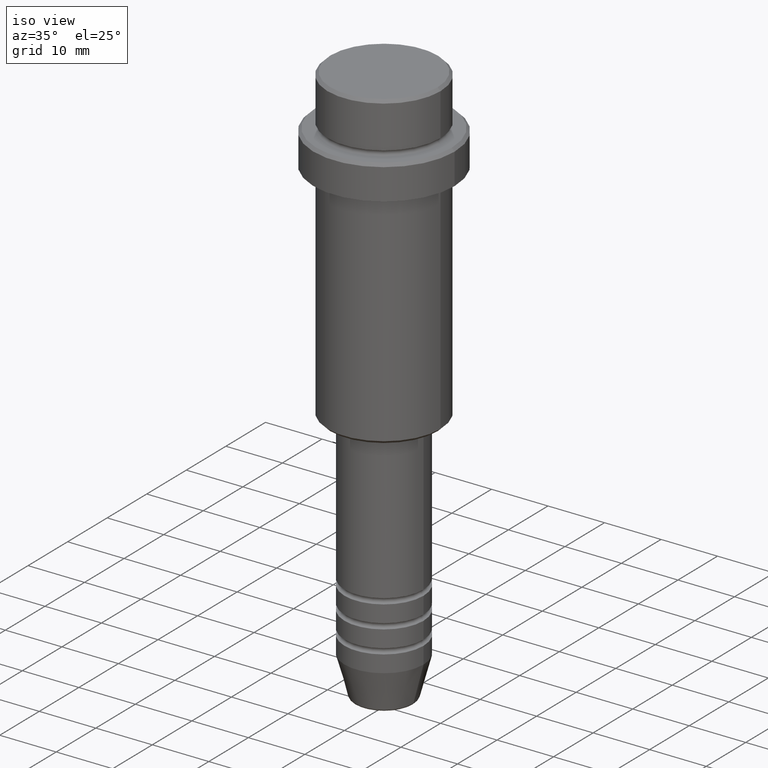
[diagram: clean part render]
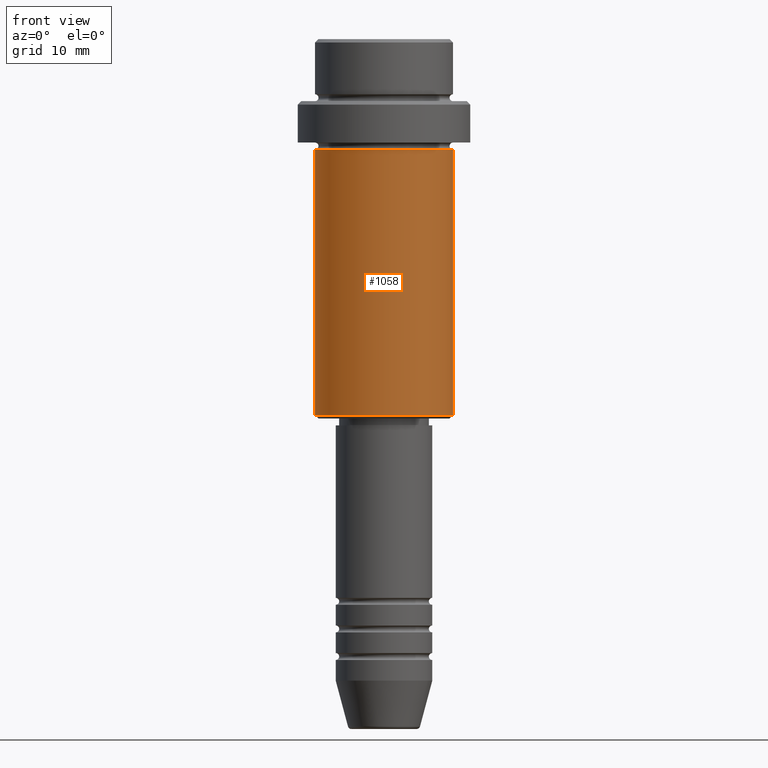
[diagram: tour spotlight — one face highlighted and labeled with its STEP entity id]
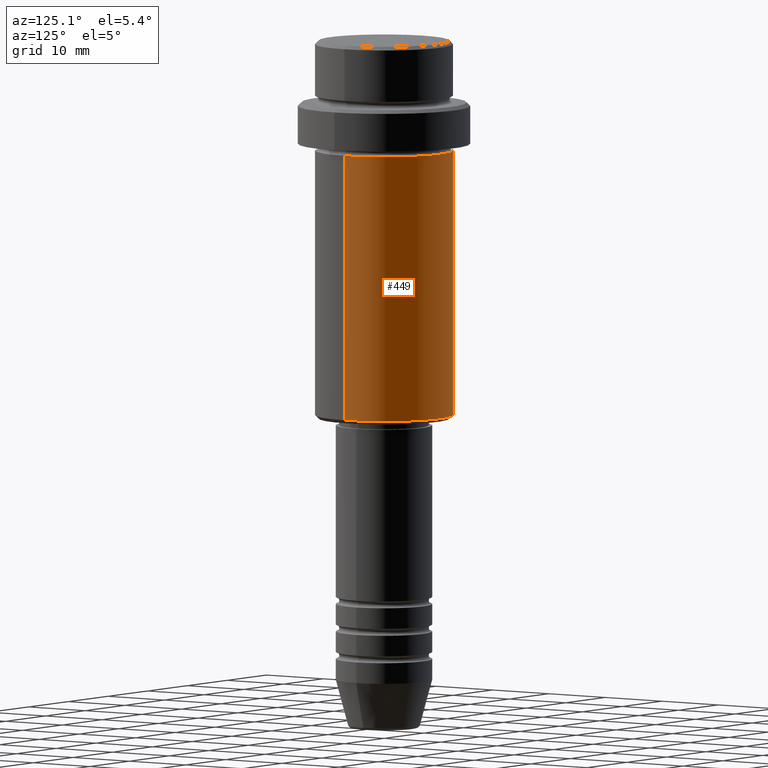
[diagram: tour spotlight — one face highlighted and labeled with its STEP entity id]
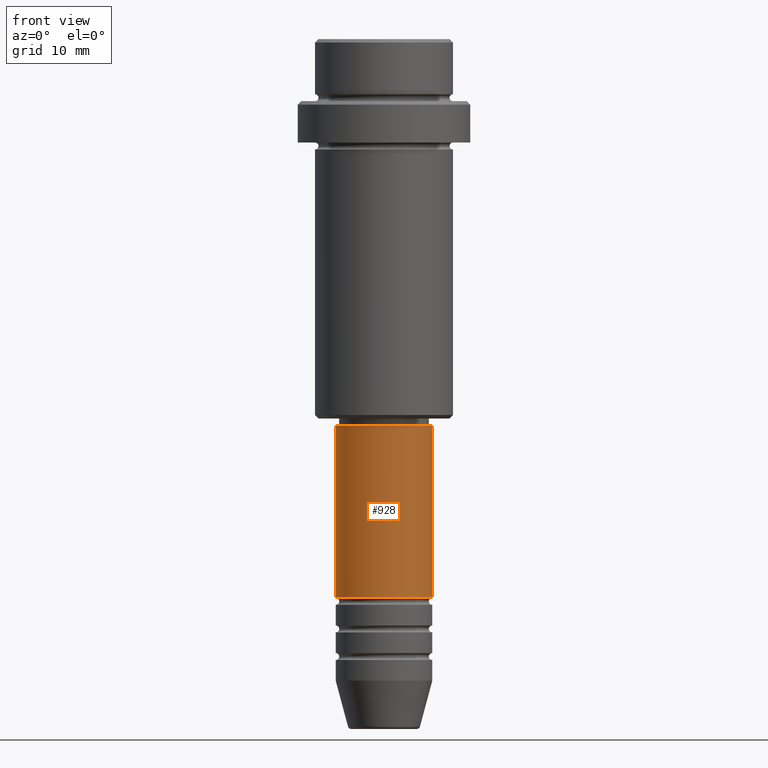
[diagram: tour spotlight — one face highlighted and labeled with its STEP entity id]
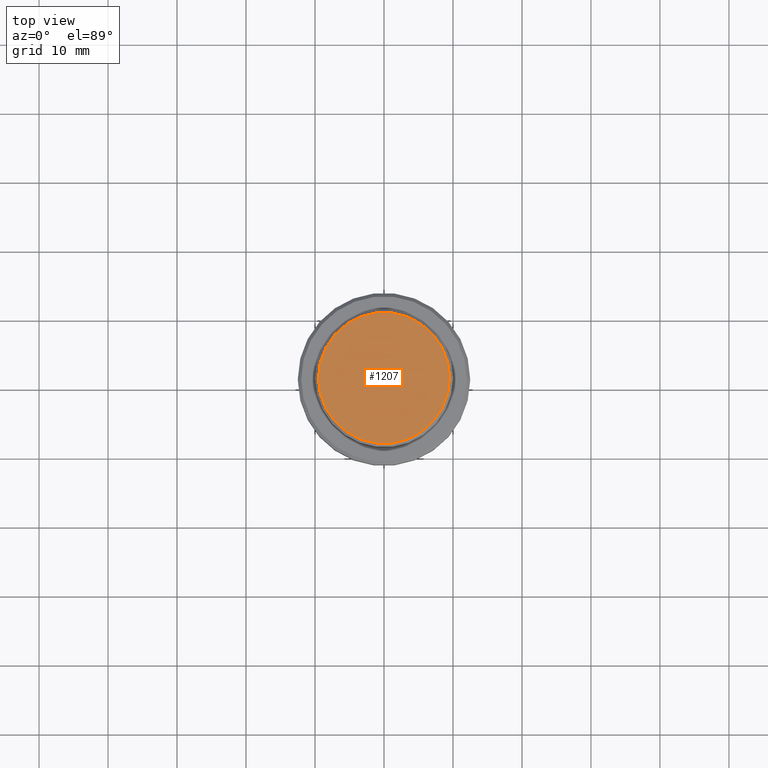
[diagram: tour spotlight — one face highlighted and labeled with its STEP entity id]
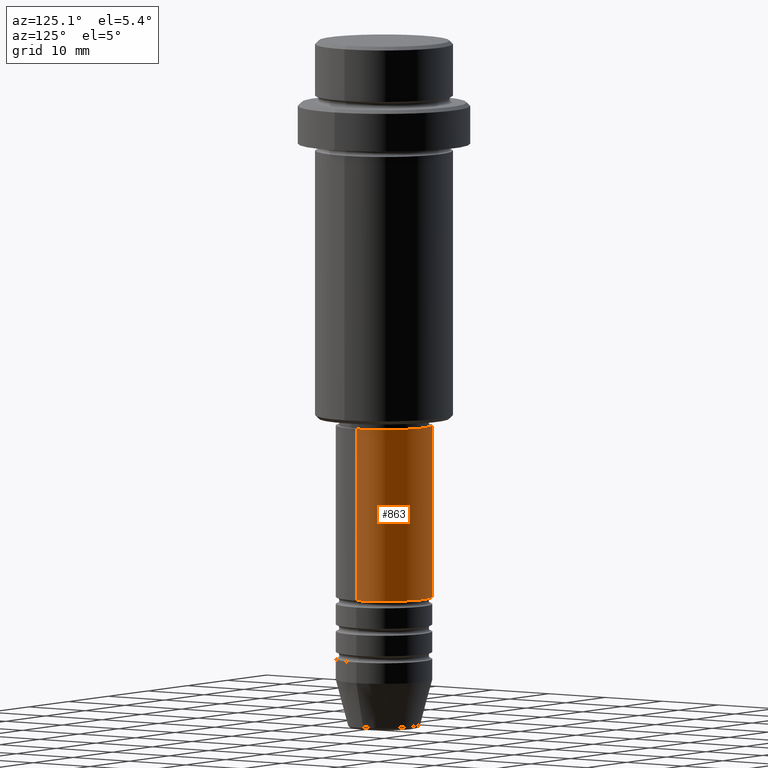
[diagram: tour spotlight — one face highlighted and labeled with its STEP entity id]
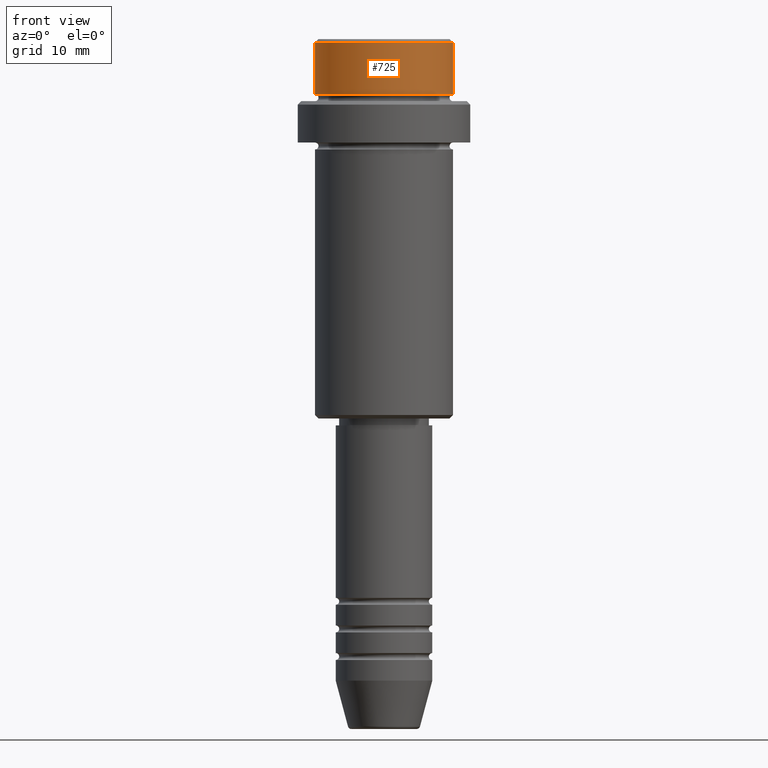
[diagram: tour spotlight — one face highlighted and labeled with its STEP entity id]
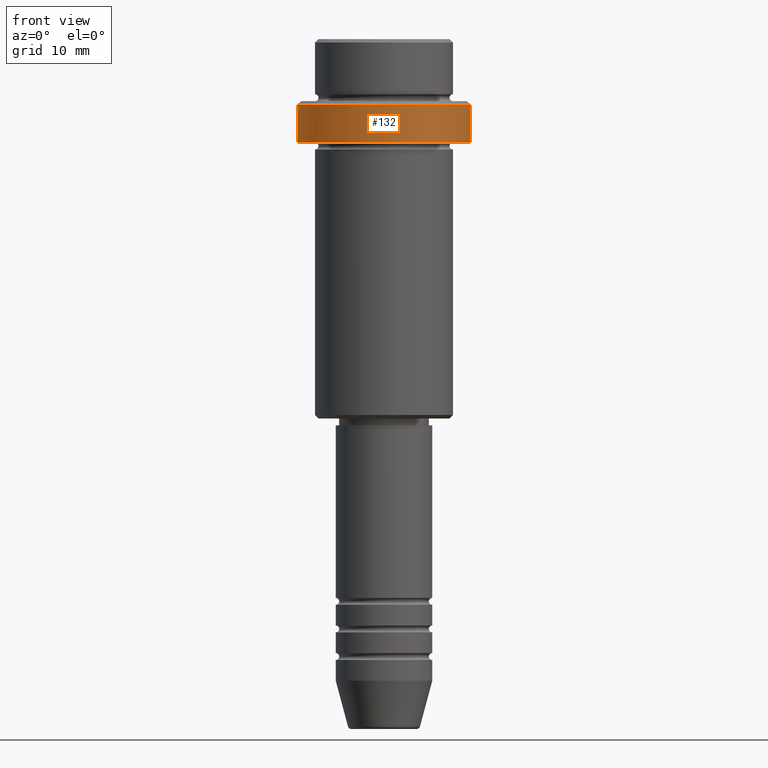
[diagram: tour spotlight — one face highlighted and labeled with its STEP entity id]
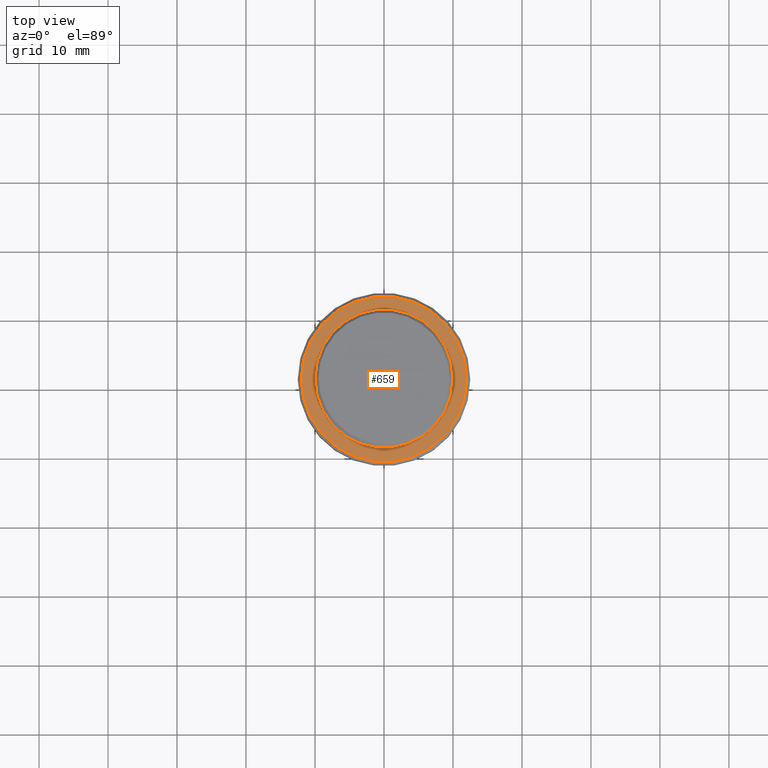
[diagram: tour spotlight — one face highlighted and labeled with its STEP entity id]
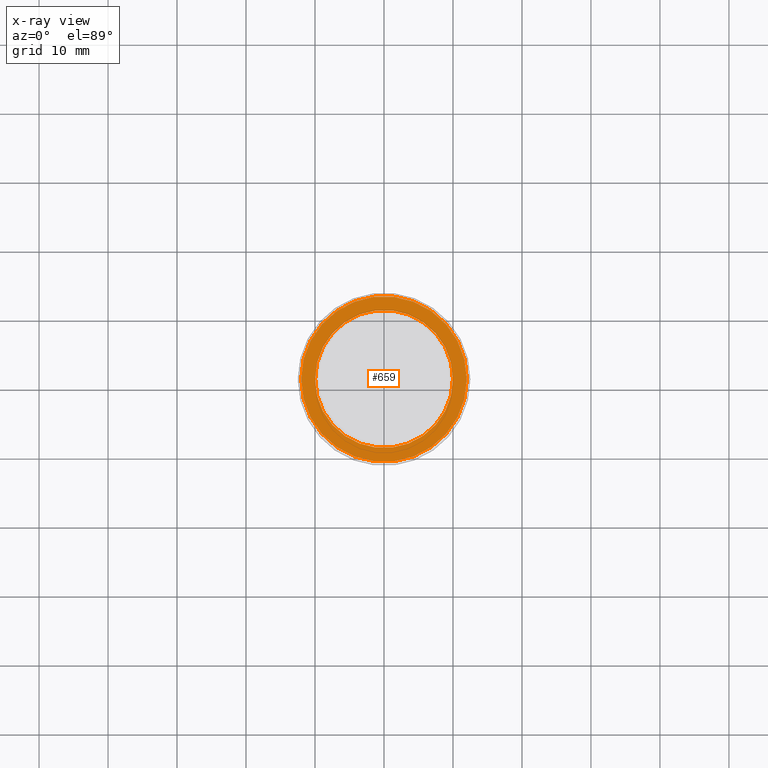
[diagram: x-ray of the same camera — body ghosted, this tour face saturated]
A machine part: a face-by-face anatomy tour. The part has 52 B-rep faces; the first image is the clean iso view, then the 8 largest visible faces are spotlighted one at a time (largest first), each with its STEP entity span.

Face 1 — front view, entity #1058. In plain terms, the highlighted cylindrical surface (partial cylindrical patch) has radius 10 mm, axis along (-0, -0, 1).
Definition (entity closure, byte-faithful):
#31 = CARTESIAN_POINT ( 'NONE',  ( -9.999999999999998224, 1.224646799147353059E-15, -54.50000000000000711 ) ) ;
#161 = EDGE_LOOP ( 'NONE', ( #986, #289, #569, #883 ) ) ;
#211 = CARTESIAN_POINT ( 'NONE',  ( 0.000000000000000000, 0.000000000000000000, -54.50000000000000711 ) ) ;
#229 = VERTEX_POINT ( 'NONE', #31 ) ;
#273 = CYLINDRICAL_SURFACE ( 'NONE', #667, 9.999999999999998224 ) ;
#289 = ORIENTED_EDGE ( 'NONE', *, *, #1116, .T. ) ;
#305 = VECTOR ( 'NONE', #800, 1000.000000000000000 ) ;
#307 = CARTESIAN_POINT ( 'NONE',  ( 9.999999999999998224, 0.000000000000000000, -54.50000000000000711 ) ) ;
#354 = CARTESIAN_POINT ( 'NONE',  ( 9.999999999999998224, 0.000000000000000000, 0.000000000000000000 ) ) ;
#439 = AXIS2_PLACEMENT_3D ( 'NONE', #1411, #754, #1197 ) ;
#442 = VERTEX_POINT ( 'NONE', #307 ) ;
#490 = DIRECTION ( 'NONE',  ( 1.000000000000000000, 0.000000000000000000, 0.000000000000000000 ) ) ;
#491 = AXIS2_PLACEMENT_3D ( 'NONE', #211, #739, #1298 ) ;
#499 = CARTESIAN_POINT ( 'NONE',  ( 0.000000000000000000, 0.000000000000000000, 0.000000000000000000 ) ) ;
#569 = ORIENTED_EDGE ( 'NONE', *, *, #656, .T. ) ;
#611 = CARTESIAN_POINT ( 'NONE',  ( -9.999999999999998224, 1.224646799147353059E-15, -16.00000000000000000 ) ) ;
#613 = CARTESIAN_POINT ( 'NONE',  ( -9.999999999999998224, 1.224646799147353059E-15, 0.000000000000000000 ) ) ;
#656 = EDGE_CURVE ( 'NONE', #442, #1079, #781, .T. ) ;
#667 = AXIS2_PLACEMENT_3D ( 'NONE', #499, #944, #490 ) ;
#694 = VECTOR ( 'NONE', #1350, 1000.000000000000000 ) ;
#712 = EDGE_CURVE ( 'NONE', #1050, #1079, #1315, .T. ) ;
#739 = DIRECTION ( 'NONE',  ( -0.000000000000000000, -0.000000000000000000, 1.000000000000000000 ) ) ;
#754 = DIRECTION ( 'NONE',  ( -0.000000000000000000, -0.000000000000000000, 1.000000000000000000 ) ) ;
#774 = EDGE_CURVE ( 'NONE', #229, #1050, #1271, .T. ) ;
#781 = LINE ( 'NONE', #354, #694 ) ;
#783 = CIRCLE ( 'NONE', #491, 9.999999999999998224 ) ;
#800 = DIRECTION ( 'NONE',  ( -0.000000000000000000, -0.000000000000000000, 1.000000000000000000 ) ) ;
#883 = ORIENTED_EDGE ( 'NONE', *, *, #712, .F. ) ;
#944 = DIRECTION ( 'NONE',  ( -0.000000000000000000, -0.000000000000000000, 1.000000000000000000 ) ) ;
#986 = ORIENTED_EDGE ( 'NONE', *, *, #774, .F. ) ;
#1044 = FACE_OUTER_BOUND ( 'NONE', #161, .T. ) ;
#1050 = VERTEX_POINT ( 'NONE', #611 ) ;
#1058 = ADVANCED_FACE ( 'NONE', ( #1044 ), #273, .T. ) ;
#1079 = VERTEX_POINT ( 'NONE', #1392 ) ;
#1116 = EDGE_CURVE ( 'NONE', #229, #442, #783, .T. ) ;
#1197 = DIRECTION ( 'NONE',  ( 1.000000000000000000, 0.000000000000000000, 0.000000000000000000 ) ) ;
#1271 = LINE ( 'NONE', #613, #305 ) ;
#1298 = DIRECTION ( 'NONE',  ( -1.000000000000000000, 0.000000000000000000, 0.000000000000000000 ) ) ;
#1315 = CIRCLE ( 'NONE', #439, 9.999999999999998224 ) ;
#1350 = DIRECTION ( 'NONE',  ( -0.000000000000000000, -0.000000000000000000, 1.000000000000000000 ) ) ;
#1392 = CARTESIAN_POINT ( 'NONE',  ( 9.999999999999998224, 0.000000000000000000, -16.00000000000000000 ) ) ;
#1411 = CARTESIAN_POINT ( 'NONE',  ( 0.000000000000000000, 0.000000000000000000, -16.00000000000000000 ) ) ;

Face 2 — auxiliary view, entity #449. In plain terms, the highlighted cylindrical surface (partial cylindrical patch) has radius 10 mm, axis along (-0, -0, 1).
Definition (entity closure, byte-faithful):
#31 = CARTESIAN_POINT ( 'NONE',  ( -9.999999999999998224, 1.224646799147353059E-15, -54.50000000000000711 ) ) ;
#32 = ORIENTED_EDGE ( 'NONE', *, *, #774, .T. ) ;
#38 = ORIENTED_EDGE ( 'NONE', *, *, #44, .T. ) ;
#44 = EDGE_CURVE ( 'NONE', #442, #229, #257, .T. ) ;
#80 = CYLINDRICAL_SURFACE ( 'NONE', #760, 9.999999999999998224 ) ;
#165 = CARTESIAN_POINT ( 'NONE',  ( 0.000000000000000000, 0.000000000000000000, -54.50000000000000711 ) ) ;
#229 = VERTEX_POINT ( 'NONE', #31 ) ;
#238 = DIRECTION ( 'NONE',  ( 1.000000000000000000, 0.000000000000000000, 0.000000000000000000 ) ) ;
#257 = CIRCLE ( 'NONE', #1053, 9.999999999999998224 ) ;
#284 = DIRECTION ( 'NONE',  ( 1.000000000000000000, 0.000000000000000000, 0.000000000000000000 ) ) ;
#305 = VECTOR ( 'NONE', #800, 1000.000000000000000 ) ;
#307 = CARTESIAN_POINT ( 'NONE',  ( 9.999999999999998224, 0.000000000000000000, -54.50000000000000711 ) ) ;
#322 = ORIENTED_EDGE ( 'NONE', *, *, #678, .F. ) ;
#354 = CARTESIAN_POINT ( 'NONE',  ( 9.999999999999998224, 0.000000000000000000, 0.000000000000000000 ) ) ;
#380 = DIRECTION ( 'NONE',  ( -0.000000000000000000, -0.000000000000000000, 1.000000000000000000 ) ) ;
#417 = AXIS2_PLACEMENT_3D ( 'NONE', #687, #1090, #238 ) ;
#422 = DIRECTION ( 'NONE',  ( -0.000000000000000000, -0.000000000000000000, 1.000000000000000000 ) ) ;
#442 = VERTEX_POINT ( 'NONE', #307 ) ;
#449 = ADVANCED_FACE ( 'NONE', ( #939 ), #80, .T. ) ;
#514 = CARTESIAN_POINT ( 'NONE',  ( 0.000000000000000000, 0.000000000000000000, 0.000000000000000000 ) ) ;
#595 = DIRECTION ( 'NONE',  ( -1.000000000000000000, 0.000000000000000000, 0.000000000000000000 ) ) ;
#611 = CARTESIAN_POINT ( 'NONE',  ( -9.999999999999998224, 1.224646799147353059E-15, -16.00000000000000000 ) ) ;
#613 = CARTESIAN_POINT ( 'NONE',  ( -9.999999999999998224, 1.224646799147353059E-15, 0.000000000000000000 ) ) ;
#655 = EDGE_LOOP ( 'NONE', ( #38, #32, #322, #780 ) ) ;
#656 = EDGE_CURVE ( 'NONE', #442, #1079, #781, .T. ) ;
#678 = EDGE_CURVE ( 'NONE', #1079, #1050, #1270, .T. ) ;
#687 = CARTESIAN_POINT ( 'NONE',  ( 0.000000000000000000, 0.000000000000000000, -16.00000000000000000 ) ) ;
#694 = VECTOR ( 'NONE', #1350, 1000.000000000000000 ) ;
#760 = AXIS2_PLACEMENT_3D ( 'NONE', #514, #422, #284 ) ;
#774 = EDGE_CURVE ( 'NONE', #229, #1050, #1271, .T. ) ;
#780 = ORIENTED_EDGE ( 'NONE', *, *, #656, .F. ) ;
#781 = LINE ( 'NONE', #354, #694 ) ;
#800 = DIRECTION ( 'NONE',  ( -0.000000000000000000, -0.000000000000000000, 1.000000000000000000 ) ) ;
#939 = FACE_OUTER_BOUND ( 'NONE', #655, .T. ) ;
#1050 = VERTEX_POINT ( 'NONE', #611 ) ;
#1053 = AXIS2_PLACEMENT_3D ( 'NONE', #165, #380, #595 ) ;
#1079 = VERTEX_POINT ( 'NONE', #1392 ) ;
#1090 = DIRECTION ( 'NONE',  ( -0.000000000000000000, -0.000000000000000000, 1.000000000000000000 ) ) ;
#1270 = CIRCLE ( 'NONE', #417, 9.999999999999998224 ) ;
#1271 = LINE ( 'NONE', #613, #305 ) ;
#1350 = DIRECTION ( 'NONE',  ( -0.000000000000000000, -0.000000000000000000, 1.000000000000000000 ) ) ;
#1392 = CARTESIAN_POINT ( 'NONE',  ( 9.999999999999998224, 0.000000000000000000, -16.00000000000000000 ) ) ;

Face 3 — front view, entity #928. In plain terms, the highlighted cylindrical surface (partial cylindrical patch) has radius 7 mm, axis along (-0, -0, 1).
Definition (entity closure, byte-faithful):
#58 = ORIENTED_EDGE ( 'NONE', *, *, #881, .F. ) ;
#145 = EDGE_CURVE ( 'NONE', #522, #1060, #1115, .T. ) ;
#169 = CYLINDRICAL_SURFACE ( 'NONE', #353, 7.000000000000000000 ) ;
#188 = FACE_OUTER_BOUND ( 'NONE', #888, .T. ) ;
#220 = DIRECTION ( 'NONE',  ( -0.000000000000000000, -0.000000000000000000, 1.000000000000000000 ) ) ;
#234 = VECTOR ( 'NONE', #471, 1000.000000000000000 ) ;
#353 = AXIS2_PLACEMENT_3D ( 'NONE', #1032, #619, #403 ) ;
#372 = CARTESIAN_POINT ( 'NONE',  ( -7.000000000000000000, 8.572527594031473190E-16, 0.000000000000000000 ) ) ;
#397 = CIRCLE ( 'NONE', #1126, 7.000000000000000000 ) ;
#403 = DIRECTION ( 'NONE',  ( 1.000000000000000000, 0.000000000000000000, 0.000000000000000000 ) ) ;
#407 = LINE ( 'NONE', #850, #1253 ) ;
#469 = CARTESIAN_POINT ( 'NONE',  ( 0.000000000000000000, 0.000000000000000000, -80.99999999999987210 ) ) ;
#471 = DIRECTION ( 'NONE',  ( -0.000000000000000000, -0.000000000000000000, 1.000000000000000000 ) ) ;
#495 = CARTESIAN_POINT ( 'NONE',  ( 0.000000000000000000, 0.000000000000000000, -55.99999999999997868 ) ) ;
#522 = VERTEX_POINT ( 'NONE', #1094 ) ;
#566 = ORIENTED_EDGE ( 'NONE', *, *, #705, .T. ) ;
#619 = DIRECTION ( 'NONE',  ( -0.000000000000000000, -0.000000000000000000, 1.000000000000000000 ) ) ;
#705 = EDGE_CURVE ( 'NONE', #522, #1040, #1226, .T. ) ;
#827 = AXIS2_PLACEMENT_3D ( 'NONE', #469, #1111, #1010 ) ;
#850 = CARTESIAN_POINT ( 'NONE',  ( 7.000000000000000000, 0.000000000000000000, 0.000000000000000000 ) ) ;
#857 = ORIENTED_EDGE ( 'NONE', *, *, #145, .F. ) ;
#881 = EDGE_CURVE ( 'NONE', #1060, #996, #397, .T. ) ;
#888 = EDGE_LOOP ( 'NONE', ( #857, #566, #1227, #58 ) ) ;
#928 = ADVANCED_FACE ( 'NONE', ( #188 ), #169, .T. ) ;
#931 = DIRECTION ( 'NONE',  ( 1.000000000000000000, 0.000000000000000000, 0.000000000000000000 ) ) ;
#996 = VERTEX_POINT ( 'NONE', #1228 ) ;
#1010 = DIRECTION ( 'NONE',  ( 1.000000000000000000, 0.000000000000000000, 0.000000000000000000 ) ) ;
#1032 = CARTESIAN_POINT ( 'NONE',  ( 0.000000000000000000, 0.000000000000000000, 0.000000000000000000 ) ) ;
#1040 = VERTEX_POINT ( 'NONE', #1216 ) ;
#1060 = VERTEX_POINT ( 'NONE', #1160 ) ;
#1088 = EDGE_CURVE ( 'NONE', #1040, #996, #407, .T. ) ;
#1094 = CARTESIAN_POINT ( 'NONE',  ( -7.000000000000000000, 8.572527594031473190E-16, -80.99999999999987210 ) ) ;
#1111 = DIRECTION ( 'NONE',  ( -0.000000000000000000, -0.000000000000000000, 1.000000000000000000 ) ) ;
#1115 = LINE ( 'NONE', #372, #234 ) ;
#1126 = AXIS2_PLACEMENT_3D ( 'NONE', #495, #1142, #931 ) ;
#1142 = DIRECTION ( 'NONE',  ( -0.000000000000000000, -0.000000000000000000, 1.000000000000000000 ) ) ;
#1160 = CARTESIAN_POINT ( 'NONE',  ( -7.000000000000000000, 8.572527594031473190E-16, -55.99999999999997868 ) ) ;
#1216 = CARTESIAN_POINT ( 'NONE',  ( 7.000000000000000000, 0.000000000000000000, -80.99999999999987210 ) ) ;
#1226 = CIRCLE ( 'NONE', #827, 7.000000000000000000 ) ;
#1227 = ORIENTED_EDGE ( 'NONE', *, *, #1088, .T. ) ;
#1228 = CARTESIAN_POINT ( 'NONE',  ( 7.000000000000000000, 0.000000000000000000, -55.99999999999997868 ) ) ;
#1253 = VECTOR ( 'NONE', #220, 1000.000000000000000 ) ;

Face 4 — top view, entity #1207. In plain terms, the highlighted planar face has unit normal (0, -0, 1).
Definition (entity closure, byte-faithful):
#83 = DIRECTION ( 'NONE',  ( 1.000000000000000000, 0.000000000000000000, 0.000000000000000000 ) ) ;
#185 = CARTESIAN_POINT ( 'NONE',  ( 9.499999999999994671, 1.194030629168669075E-15, 0.000000000000000000 ) ) ;
#230 = ORIENTED_EDGE ( 'NONE', *, *, #733, .T. ) ;
#283 = CARTESIAN_POINT ( 'NONE',  ( -9.499999999999994671, 0.000000000000000000, 0.000000000000000000 ) ) ;
#309 = EDGE_CURVE ( 'NONE', #1297, #769, #735, .T. ) ;
#582 = AXIS2_PLACEMENT_3D ( 'NONE', #979, #1057, #1280 ) ;
#637 = DIRECTION ( 'NONE',  ( 1.000000000000000000, 0.000000000000000000, 0.000000000000000000 ) ) ;
#720 = DIRECTION ( 'NONE',  ( -0.000000000000000000, -0.000000000000000000, 1.000000000000000000 ) ) ;
#733 = EDGE_CURVE ( 'NONE', #769, #1297, #810, .T. ) ;
#735 = CIRCLE ( 'NONE', #918, 9.499999999999994671 ) ;
#769 = VERTEX_POINT ( 'NONE', #283 ) ;
#810 = CIRCLE ( 'NONE', #582, 9.499999999999994671 ) ;
#918 = AXIS2_PLACEMENT_3D ( 'NONE', #930, #720, #637 ) ;
#930 = CARTESIAN_POINT ( 'NONE',  ( 0.000000000000000000, 0.000000000000000000, 0.000000000000000000 ) ) ;
#968 = CARTESIAN_POINT ( 'NONE',  ( 0.000000000000000000, 0.000000000000000000, 0.000000000000000000 ) ) ;
#979 = CARTESIAN_POINT ( 'NONE',  ( 0.000000000000000000, 0.000000000000000000, 0.000000000000000000 ) ) ;
#1057 = DIRECTION ( 'NONE',  ( -0.000000000000000000, -0.000000000000000000, 1.000000000000000000 ) ) ;
#1107 = ORIENTED_EDGE ( 'NONE', *, *, #309, .T. ) ;
#1178 = PLANE ( 'NONE',  #1365 ) ;
#1202 = FACE_OUTER_BOUND ( 'NONE', #1242, .T. ) ;
#1207 = ADVANCED_FACE ( 'NONE', ( #1202 ), #1178, .T. ) ;
#1210 = DIRECTION ( 'NONE',  ( 0.000000000000000000, -0.000000000000000000, 1.000000000000000000 ) ) ;
#1242 = EDGE_LOOP ( 'NONE', ( #230, #1107 ) ) ;
#1280 = DIRECTION ( 'NONE',  ( 1.000000000000000000, 0.000000000000000000, 0.000000000000000000 ) ) ;
#1297 = VERTEX_POINT ( 'NONE', #185 ) ;
#1365 = AXIS2_PLACEMENT_3D ( 'NONE', #968, #1210, #83 ) ;

Face 5 — auxiliary view, entity #863. In plain terms, the highlighted cylindrical surface (partial cylindrical patch) has radius 7 mm, axis along (-0, -0, 1).
Definition (entity closure, byte-faithful):
#22 = CARTESIAN_POINT ( 'NONE',  ( 0.000000000000000000, 0.000000000000000000, -55.99999999999997868 ) ) ;
#27 = ORIENTED_EDGE ( 'NONE', *, *, #960, .F. ) ;
#65 = DIRECTION ( 'NONE',  ( 1.000000000000000000, 0.000000000000000000, 0.000000000000000000 ) ) ;
#67 = CARTESIAN_POINT ( 'NONE',  ( 0.000000000000000000, 0.000000000000000000, -80.99999999999987210 ) ) ;
#145 = EDGE_CURVE ( 'NONE', #522, #1060, #1115, .T. ) ;
#183 = CYLINDRICAL_SURFACE ( 'NONE', #645, 7.000000000000000000 ) ;
#220 = DIRECTION ( 'NONE',  ( -0.000000000000000000, -0.000000000000000000, 1.000000000000000000 ) ) ;
#234 = VECTOR ( 'NONE', #471, 1000.000000000000000 ) ;
#264 = DIRECTION ( 'NONE',  ( -0.000000000000000000, -0.000000000000000000, 1.000000000000000000 ) ) ;
#275 = FACE_OUTER_BOUND ( 'NONE', #1141, .T. ) ;
#327 = AXIS2_PLACEMENT_3D ( 'NONE', #22, #264, #684 ) ;
#372 = CARTESIAN_POINT ( 'NONE',  ( -7.000000000000000000, 8.572527594031473190E-16, 0.000000000000000000 ) ) ;
#407 = LINE ( 'NONE', #850, #1253 ) ;
#468 = CIRCLE ( 'NONE', #327, 7.000000000000000000 ) ;
#471 = DIRECTION ( 'NONE',  ( -0.000000000000000000, -0.000000000000000000, 1.000000000000000000 ) ) ;
#511 = AXIS2_PLACEMENT_3D ( 'NONE', #67, #704, #1273 ) ;
#522 = VERTEX_POINT ( 'NONE', #1094 ) ;
#635 = ORIENTED_EDGE ( 'NONE', *, *, #1088, .F. ) ;
#645 = AXIS2_PLACEMENT_3D ( 'NONE', #832, #730, #65 ) ;
#684 = DIRECTION ( 'NONE',  ( 1.000000000000000000, 0.000000000000000000, 0.000000000000000000 ) ) ;
#704 = DIRECTION ( 'NONE',  ( -0.000000000000000000, -0.000000000000000000, 1.000000000000000000 ) ) ;
#730 = DIRECTION ( 'NONE',  ( -0.000000000000000000, -0.000000000000000000, 1.000000000000000000 ) ) ;
#749 = ORIENTED_EDGE ( 'NONE', *, *, #145, .T. ) ;
#832 = CARTESIAN_POINT ( 'NONE',  ( 0.000000000000000000, 0.000000000000000000, 0.000000000000000000 ) ) ;
#850 = CARTESIAN_POINT ( 'NONE',  ( 7.000000000000000000, 0.000000000000000000, 0.000000000000000000 ) ) ;
#863 = ADVANCED_FACE ( 'NONE', ( #275 ), #183, .T. ) ;
#867 = ORIENTED_EDGE ( 'NONE', *, *, #1225, .T. ) ;
#960 = EDGE_CURVE ( 'NONE', #996, #1060, #468, .T. ) ;
#996 = VERTEX_POINT ( 'NONE', #1228 ) ;
#1040 = VERTEX_POINT ( 'NONE', #1216 ) ;
#1060 = VERTEX_POINT ( 'NONE', #1160 ) ;
#1088 = EDGE_CURVE ( 'NONE', #1040, #996, #407, .T. ) ;
#1094 = CARTESIAN_POINT ( 'NONE',  ( -7.000000000000000000, 8.572527594031473190E-16, -80.99999999999987210 ) ) ;
#1115 = LINE ( 'NONE', #372, #234 ) ;
#1141 = EDGE_LOOP ( 'NONE', ( #867, #749, #27, #635 ) ) ;
#1160 = CARTESIAN_POINT ( 'NONE',  ( -7.000000000000000000, 8.572527594031473190E-16, -55.99999999999997868 ) ) ;
#1216 = CARTESIAN_POINT ( 'NONE',  ( 7.000000000000000000, 0.000000000000000000, -80.99999999999987210 ) ) ;
#1225 = EDGE_CURVE ( 'NONE', #1040, #522, #1289, .T. ) ;
#1228 = CARTESIAN_POINT ( 'NONE',  ( 7.000000000000000000, 0.000000000000000000, -55.99999999999997868 ) ) ;
#1253 = VECTOR ( 'NONE', #220, 1000.000000000000000 ) ;
#1273 = DIRECTION ( 'NONE',  ( 1.000000000000000000, 0.000000000000000000, 0.000000000000000000 ) ) ;
#1289 = CIRCLE ( 'NONE', #511, 7.000000000000000000 ) ;

Face 6 — front view, entity #725. In plain terms, the highlighted cylindrical surface (partial cylindrical patch) has radius 10 mm, axis along (-0, -0, 1).
Definition (entity closure, byte-faithful):
#76 = AXIS2_PLACEMENT_3D ( 'NONE', #954, #405, #1167 ) ;
#110 = DIRECTION ( 'NONE',  ( -0.000000000000000000, -0.000000000000000000, 1.000000000000000000 ) ) ;
#155 = AXIS2_PLACEMENT_3D ( 'NONE', #630, #110, #1303 ) ;
#198 = CARTESIAN_POINT ( 'NONE',  ( -9.999999999999998224, 1.224646799147353059E-15, -0.5000000000000108802 ) ) ;
#219 = FACE_OUTER_BOUND ( 'NONE', #313, .T. ) ;
#243 = EDGE_CURVE ( 'NONE', #1338, #1145, #389, .T. ) ;
#263 = ORIENTED_EDGE ( 'NONE', *, *, #1293, .T. ) ;
#313 = EDGE_LOOP ( 'NONE', ( #1257, #849, #263, #1344 ) ) ;
#358 = DIRECTION ( 'NONE',  ( -0.000000000000000000, -0.000000000000000000, 1.000000000000000000 ) ) ;
#389 = CIRCLE ( 'NONE', #806, 9.999999999999998224 ) ;
#405 = DIRECTION ( 'NONE',  ( 0.000000000000000000, 0.000000000000000000, -1.000000000000000000 ) ) ;
#434 = VERTEX_POINT ( 'NONE', #843 ) ;
#486 = LINE ( 'NONE', #1153, #922 ) ;
#604 = VECTOR ( 'NONE', #721, 1000.000000000000000 ) ;
#616 = DIRECTION ( 'NONE',  ( -0.000000000000000000, -0.000000000000000000, 1.000000000000000000 ) ) ;
#630 = CARTESIAN_POINT ( 'NONE',  ( 0.000000000000000000, 0.000000000000000000, 0.000000000000000000 ) ) ;
#721 = DIRECTION ( 'NONE',  ( -0.000000000000000000, -0.000000000000000000, 1.000000000000000000 ) ) ;
#725 = ADVANCED_FACE ( 'NONE', ( #219 ), #1287, .T. ) ;
#791 = DIRECTION ( 'NONE',  ( 1.000000000000000000, 0.000000000000000000, 0.000000000000000000 ) ) ;
#798 = CARTESIAN_POINT ( 'NONE',  ( 0.000000000000000000, 0.000000000000000000, -7.999999999999998224 ) ) ;
#806 = AXIS2_PLACEMENT_3D ( 'NONE', #798, #358, #791 ) ;
#816 = LINE ( 'NONE', #1168, #604 ) ;
#841 = CARTESIAN_POINT ( 'NONE',  ( 9.999999999999998224, 0.000000000000000000, -7.999999999999998224 ) ) ;
#843 = CARTESIAN_POINT ( 'NONE',  ( 9.999999999999998224, 0.000000000000000000, -0.5000000000000108802 ) ) ;
#849 = ORIENTED_EDGE ( 'NONE', *, *, #243, .T. ) ;
#901 = EDGE_CURVE ( 'NONE', #1338, #1409, #816, .T. ) ;
#922 = VECTOR ( 'NONE', #616, 1000.000000000000000 ) ;
#954 = CARTESIAN_POINT ( 'NONE',  ( 0.000000000000000000, 0.000000000000000000, -0.5000000000000108802 ) ) ;
#1145 = VERTEX_POINT ( 'NONE', #841 ) ;
#1153 = CARTESIAN_POINT ( 'NONE',  ( 9.999999999999998224, 0.000000000000000000, 0.000000000000000000 ) ) ;
#1167 = DIRECTION ( 'NONE',  ( 1.000000000000000000, 0.000000000000000000, 0.000000000000000000 ) ) ;
#1168 = CARTESIAN_POINT ( 'NONE',  ( -9.999999999999998224, 1.224646799147353059E-15, 0.000000000000000000 ) ) ;
#1198 = CIRCLE ( 'NONE', #76, 9.999999999999998224 ) ;
#1257 = ORIENTED_EDGE ( 'NONE', *, *, #901, .F. ) ;
#1264 = CARTESIAN_POINT ( 'NONE',  ( -9.999999999999998224, 1.224646799147353059E-15, -7.999999999999998224 ) ) ;
#1287 = CYLINDRICAL_SURFACE ( 'NONE', #155, 9.999999999999998224 ) ;
#1293 = EDGE_CURVE ( 'NONE', #1145, #434, #486, .T. ) ;
#1303 = DIRECTION ( 'NONE',  ( 1.000000000000000000, 0.000000000000000000, 0.000000000000000000 ) ) ;
#1338 = VERTEX_POINT ( 'NONE', #1264 ) ;
#1344 = ORIENTED_EDGE ( 'NONE', *, *, #1377, .T. ) ;
#1377 = EDGE_CURVE ( 'NONE', #434, #1409, #1198, .T. ) ;
#1409 = VERTEX_POINT ( 'NONE', #198 ) ;

Face 7 — front view, entity #132. In plain terms, the highlighted cylindrical surface (partial cylindrical patch) has radius 12.5 mm, axis along (-0, -0, 1).
Definition (entity closure, byte-faithful):
#88 = VERTEX_POINT ( 'NONE', #1082 ) ;
#108 = ORIENTED_EDGE ( 'NONE', *, *, #1353, .T. ) ;
#132 = ADVANCED_FACE ( 'NONE', ( #528 ), #970, .T. ) ;
#148 = ORIENTED_EDGE ( 'NONE', *, *, #421, .T. ) ;
#153 = AXIS2_PLACEMENT_3D ( 'NONE', #408, #1180, #518 ) ;
#182 = VERTEX_POINT ( 'NONE', #476 ) ;
#192 = AXIS2_PLACEMENT_3D ( 'NONE', #1408, #1301, #752 ) ;
#205 = DIRECTION ( 'NONE',  ( -0.000000000000000000, -0.000000000000000000, 1.000000000000000000 ) ) ;
#288 = CARTESIAN_POINT ( 'NONE',  ( -12.50000000000000000, 1.530808498934191521E-15, -9.500000000000005329 ) ) ;
#333 = CARTESIAN_POINT ( 'NONE',  ( 12.50000000000000000, 0.000000000000000000, -15.00000000000000000 ) ) ;
#357 = ORIENTED_EDGE ( 'NONE', *, *, #958, .T. ) ;
#408 = CARTESIAN_POINT ( 'NONE',  ( 0.000000000000000000, 0.000000000000000000, -15.00000000000000000 ) ) ;
#421 = EDGE_CURVE ( 'NONE', #88, #897, #553, .T. ) ;
#476 = CARTESIAN_POINT ( 'NONE',  ( -12.50000000000000000, 1.530808498934191521E-15, -15.00000000000000000 ) ) ;
#518 = DIRECTION ( 'NONE',  ( 1.000000000000000000, 0.000000000000000000, 0.000000000000000000 ) ) ;
#528 = FACE_OUTER_BOUND ( 'NONE', #1368, .T. ) ;
#553 = CIRCLE ( 'NONE', #1014, 12.50000000000000000 ) ;
#699 = DIRECTION ( 'NONE',  ( -0.000000000000000000, -0.000000000000000000, 1.000000000000000000 ) ) ;
#723 = DIRECTION ( 'NONE',  ( 0.000000000000000000, 0.000000000000000000, -1.000000000000000000 ) ) ;
#743 = LINE ( 'NONE', #1183, #1174 ) ;
#752 = DIRECTION ( 'NONE',  ( 1.000000000000000000, 0.000000000000000000, 0.000000000000000000 ) ) ;
#763 = EDGE_CURVE ( 'NONE', #182, #897, #743, .T. ) ;
#802 = CARTESIAN_POINT ( 'NONE',  ( 12.50000000000000000, 0.000000000000000000, 0.000000000000000000 ) ) ;
#835 = ORIENTED_EDGE ( 'NONE', *, *, #763, .F. ) ;
#897 = VERTEX_POINT ( 'NONE', #288 ) ;
#958 = EDGE_CURVE ( 'NONE', #182, #1201, #1081, .T. ) ;
#970 = CYLINDRICAL_SURFACE ( 'NONE', #192, 12.50000000000000000 ) ;
#1013 = VECTOR ( 'NONE', #699, 1000.000000000000000 ) ;
#1014 = AXIS2_PLACEMENT_3D ( 'NONE', #1164, #723, #1173 ) ;
#1081 = CIRCLE ( 'NONE', #153, 12.50000000000000000 ) ;
#1082 = CARTESIAN_POINT ( 'NONE',  ( 12.50000000000000000, 0.000000000000000000, -9.500000000000005329 ) ) ;
#1164 = CARTESIAN_POINT ( 'NONE',  ( 0.000000000000000000, 0.000000000000000000, -9.500000000000005329 ) ) ;
#1173 = DIRECTION ( 'NONE',  ( 1.000000000000000000, 0.000000000000000000, 0.000000000000000000 ) ) ;
#1174 = VECTOR ( 'NONE', #205, 1000.000000000000000 ) ;
#1180 = DIRECTION ( 'NONE',  ( -0.000000000000000000, -0.000000000000000000, 1.000000000000000000 ) ) ;
#1183 = CARTESIAN_POINT ( 'NONE',  ( -12.50000000000000000, 1.530808498934191521E-15, 0.000000000000000000 ) ) ;
#1201 = VERTEX_POINT ( 'NONE', #333 ) ;
#1301 = DIRECTION ( 'NONE',  ( -0.000000000000000000, -0.000000000000000000, 1.000000000000000000 ) ) ;
#1353 = EDGE_CURVE ( 'NONE', #1201, #88, #1387, .T. ) ;
#1368 = EDGE_LOOP ( 'NONE', ( #835, #357, #108, #148 ) ) ;
#1387 = LINE ( 'NONE', #802, #1013 ) ;
#1408 = CARTESIAN_POINT ( 'NONE',  ( 0.000000000000000000, 0.000000000000000000, 0.000000000000000000 ) ) ;

Face 8 — top view, entity #659. An x-ray twin of the same camera follows (body ghosted, this face saturated) — the face is partly hidden behind the body. In plain terms, the highlighted planar face has unit normal (0, -0, 1).
Definition (entity closure, byte-faithful):
#12 = FACE_BOUND ( 'NONE', #976, .T. ) ;
#36 = CARTESIAN_POINT ( 'NONE',  ( -11.99999999999999645, 0.000000000000000000, -9.000000000000000000 ) ) ;
#37 = AXIS2_PLACEMENT_3D ( 'NONE', #346, #244, #682 ) ;
#60 = AXIS2_PLACEMENT_3D ( 'NONE', #1248, #766, #266 ) ;
#77 = AXIS2_PLACEMENT_3D ( 'NONE', #228, #453, #1328 ) ;
#81 = CARTESIAN_POINT ( 'NONE',  ( 0.000000000000000000, 0.000000000000000000, -9.000000000000000000 ) ) ;
#100 = CARTESIAN_POINT ( 'NONE',  ( 11.99999999999999645, 1.500192328955507537E-15, -9.000000000000000000 ) ) ;
#128 = VERTEX_POINT ( 'NONE', #100 ) ;
#206 = ORIENTED_EDGE ( 'NONE', *, *, #696, .T. ) ;
#217 = CIRCLE ( 'NONE', #37, 11.99999999999999645 ) ;
#223 = PLANE ( 'NONE',  #77 ) ;
#228 = CARTESIAN_POINT ( 'NONE',  ( 0.000000000000000000, 9.499999999999992895, -9.000000000000000000 ) ) ;
#244 = DIRECTION ( 'NONE',  ( -0.000000000000000000, -0.000000000000000000, 1.000000000000000000 ) ) ;
#266 = DIRECTION ( 'NONE',  ( 1.000000000000000000, 0.000000000000000000, 0.000000000000000000 ) ) ;
#278 = EDGE_CURVE ( 'NONE', #978, #683, #1246, .T. ) ;
#346 = CARTESIAN_POINT ( 'NONE',  ( 0.000000000000000000, 0.000000000000000000, -9.000000000000000000 ) ) ;
#411 = DIRECTION ( 'NONE',  ( 1.000000000000000000, 0.000000000000000000, 0.000000000000000000 ) ) ;
#445 = ORIENTED_EDGE ( 'NONE', *, *, #797, .T. ) ;
#453 = DIRECTION ( 'NONE',  ( 0.000000000000000000, -0.000000000000000000, 1.000000000000000000 ) ) ;
#621 = AXIS2_PLACEMENT_3D ( 'NONE', #916, #815, #1258 ) ;
#659 = ADVANCED_FACE ( 'NONE', ( #801, #12 ), #223, .T. ) ;
#682 = DIRECTION ( 'NONE',  ( 1.000000000000000000, 0.000000000000000000, 0.000000000000000000 ) ) ;
#683 = VERTEX_POINT ( 'NONE', #1334 ) ;
#696 = EDGE_CURVE ( 'NONE', #706, #128, #217, .T. ) ;
#697 = AXIS2_PLACEMENT_3D ( 'NONE', #81, #1165, #411 ) ;
#706 = VERTEX_POINT ( 'NONE', #36 ) ;
#751 = EDGE_CURVE ( 'NONE', #683, #978, #894, .T. ) ;
#766 = DIRECTION ( 'NONE',  ( -0.000000000000000000, -0.000000000000000000, 1.000000000000000000 ) ) ;
#773 = ORIENTED_EDGE ( 'NONE', *, *, #751, .T. ) ;
#796 = CARTESIAN_POINT ( 'NONE',  ( 9.999999999999992895, 0.000000000000000000, -9.000000000000000000 ) ) ;
#797 = EDGE_CURVE ( 'NONE', #128, #706, #873, .T. ) ;
#801 = FACE_OUTER_BOUND ( 'NONE', #1372, .T. ) ;
#815 = DIRECTION ( 'NONE',  ( 0.000000000000000000, 0.000000000000000000, -1.000000000000000000 ) ) ;
#873 = CIRCLE ( 'NONE', #60, 11.99999999999999645 ) ;
#894 = CIRCLE ( 'NONE', #697, 9.999999999999992895 ) ;
#916 = CARTESIAN_POINT ( 'NONE',  ( 0.000000000000000000, 0.000000000000000000, -9.000000000000000000 ) ) ;
#976 = EDGE_LOOP ( 'NONE', ( #1083, #773 ) ) ;
#978 = VERTEX_POINT ( 'NONE', #796 ) ;
#1083 = ORIENTED_EDGE ( 'NONE', *, *, #278, .T. ) ;
#1165 = DIRECTION ( 'NONE',  ( 0.000000000000000000, 0.000000000000000000, -1.000000000000000000 ) ) ;
#1246 = CIRCLE ( 'NONE', #621, 9.999999999999992895 ) ;
#1248 = CARTESIAN_POINT ( 'NONE',  ( 0.000000000000000000, 0.000000000000000000, -9.000000000000000000 ) ) ;
#1258 = DIRECTION ( 'NONE',  ( 1.000000000000000000, 0.000000000000000000, 0.000000000000000000 ) ) ;
#1328 = DIRECTION ( 'NONE',  ( 1.000000000000000000, 0.000000000000000000, 0.000000000000000000 ) ) ;
#1334 = CARTESIAN_POINT ( 'NONE',  ( -9.999999999999992895, 1.224646799147352468E-15, -9.000000000000000000 ) ) ;
#1372 = EDGE_LOOP ( 'NONE', ( #206, #445 ) ) ;